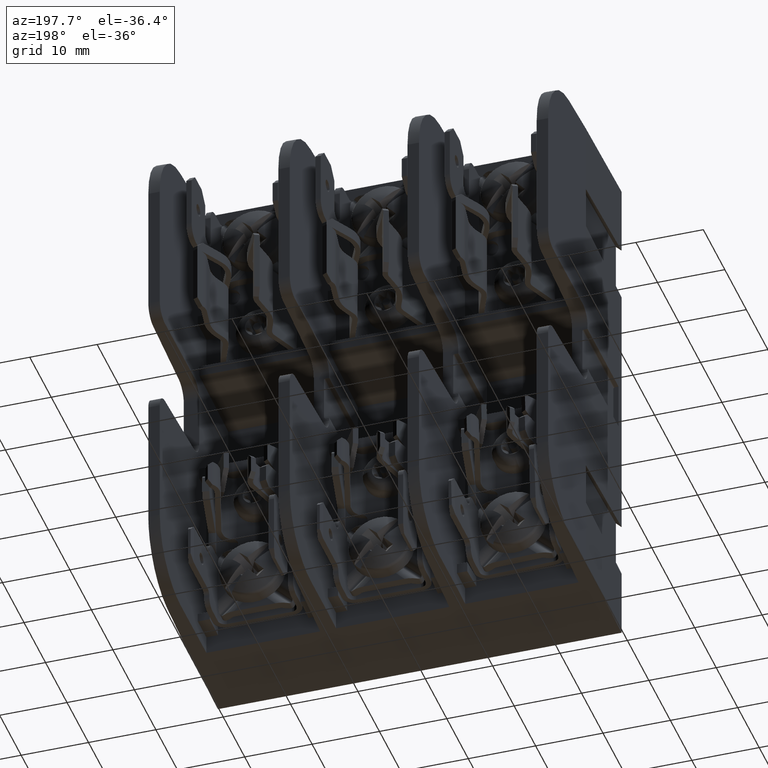
[diagram: clean part render]
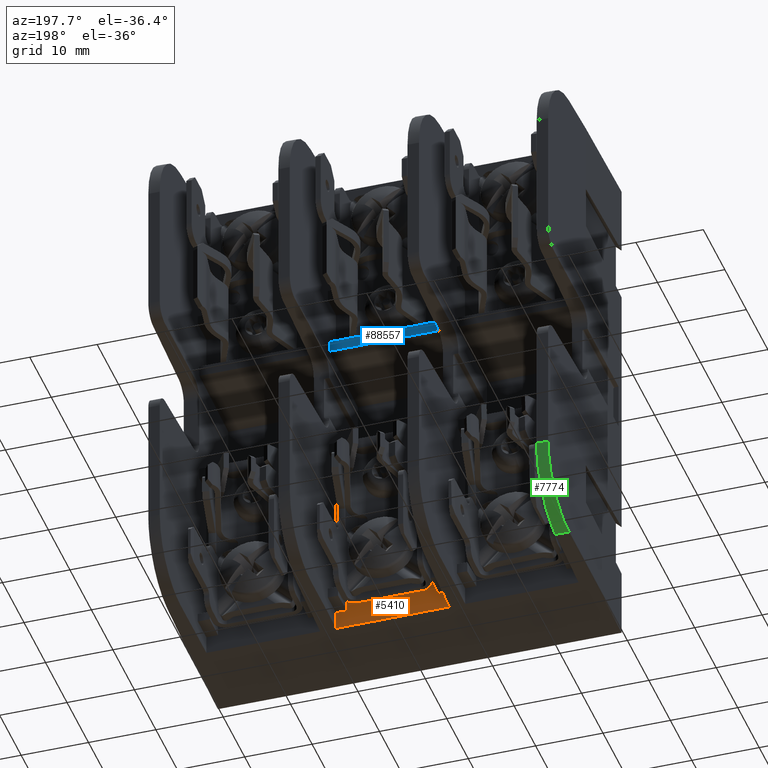
[diagram: same view with three faces highlighted in distinct colors, each labeled with its STEP entity id]
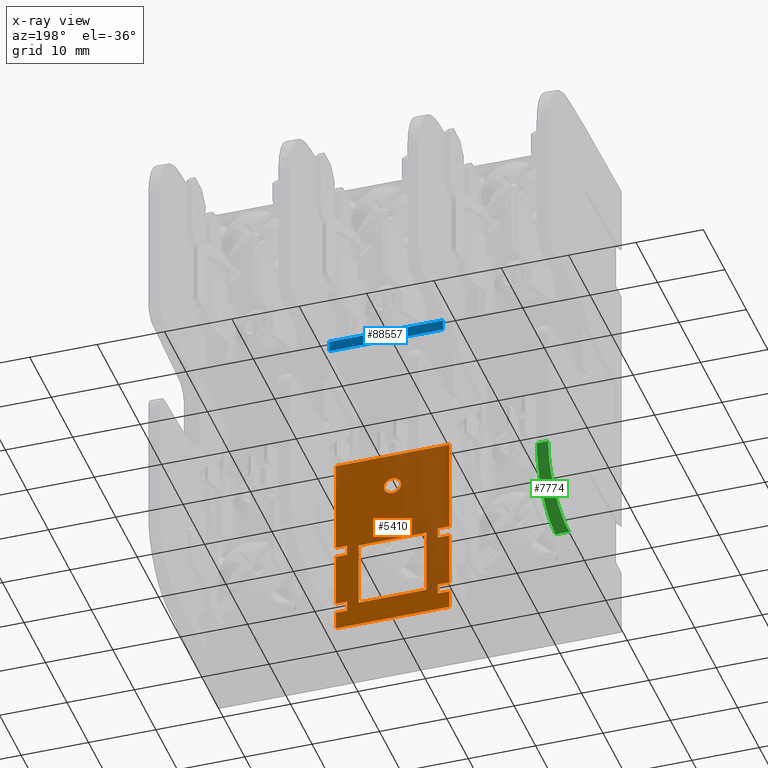
[diagram: x-ray of the same camera — body ghosted, the three highlighted faces saturated]
A machine part, auxiliary view with three faces highlighted in distinct colors.
The next image is the same camera in x-ray (body ghosted, the three faces saturated) — at least one of them is partly hidden behind the body in this view.
Their STEP definitions:

[orange] entity #5410 — the highlighted planar face has unit normal (-0, 1, 0).
#514 = DIRECTION ( 'NONE',  ( -1.000000000000000000, 0.0000000000000000000, 1.999810943495010400E-013 ) ) ;
#1821 = CIRCLE ( 'NONE', #128884, 0.05049999999999998200 ) ;
#2127 = VERTEX_POINT ( 'NONE', #25634 ) ;
#2628 = VECTOR ( 'NONE', #116517, 39.37007874015748100 ) ;
#2884 = DIRECTION ( 'NONE',  ( 1.000000000000000000, 0.0000000000000000000, 0.0000000000000000000 ) ) ;
#2974 = VECTOR ( 'NONE', #43272, 39.37007874015748100 ) ;
#3015 = EDGE_CURVE ( 'NONE', #97494, #79751, #48067, .T. ) ;
#3850 = VECTOR ( 'NONE', #114746, 39.37007874015748100 ) ;
#4665 = DIRECTION ( 'NONE',  ( -0.0000000000000000000, -0.0000000000000000000, 1.000000000000000000 ) ) ;
#4876 = VECTOR ( 'NONE', #125755, 39.37007874015748100 ) ;
#5318 = CARTESIAN_POINT ( 'NONE',  ( -0.4899999999999999900, 0.4999999999999997200, 1.507539615254126100 ) ) ;
#5410 = ADVANCED_FACE ( 'NONE', ( #39999, #125000, #69543 ), #92947, .T. ) ;
#6309 = VECTOR ( 'NONE', #28241, 39.37007874015748100 ) ;
#7245 = DIRECTION ( 'NONE',  ( 0.0000000000000000000, 1.000000000000000000, 0.0000000000000000000 ) ) ;
#7890 = VERTEX_POINT ( 'NONE', #70241 ) ;
#9371 = DIRECTION ( 'NONE',  ( 1.000000000000000000, -0.0000000000000000000, -0.0000000000000000000 ) ) ;
#9963 = DIRECTION ( 'NONE',  ( 0.0000000000000000000, 0.0000000000000000000, 1.000000000000000000 ) ) ;
#10548 = ORIENTED_EDGE ( 'NONE', *, *, #124526, .F. ) ;
#12171 = ORIENTED_EDGE ( 'NONE', *, *, #132145, .F. ) ;
#12708 = EDGE_CURVE ( 'NONE', #59884, #97494, #82815, .T. ) ;
#14083 = AXIS2_PLACEMENT_3D ( 'NONE', #26884, #104556, #38114 ) ;
#14349 = EDGE_LOOP ( 'NONE', ( #108594, #140623 ) ) ;
#15720 = VERTEX_POINT ( 'NONE', #85454 ) ;
#15790 = CARTESIAN_POINT ( 'NONE',  ( -0.4250000000000002700, 0.4999999999999997200, -1.012999999999999900 ) ) ;
#17501 = VECTOR ( 'NONE', #133677, 39.37007874015748100 ) ;
#18180 = LINE ( 'NONE', #34963, #47773 ) ;
#18865 = ORIENTED_EDGE ( 'NONE', *, *, #90939, .F. ) ;
#19134 = CARTESIAN_POINT ( 'NONE',  ( -1.087341054555523100, 0.4999999999999997200, -1.012999999999999900 ) ) ;
#23185 = VERTEX_POINT ( 'NONE', #132402 ) ;
#23400 = VECTOR ( 'NONE', #77250, 39.37007874015748100 ) ;
#23803 = CARTESIAN_POINT ( 'NONE',  ( -1.087341054555523100, 0.4999999999999997200, -0.3859999999999999000 ) ) ;
#23829 = ORIENTED_EDGE ( 'NONE', *, *, #101571, .F. ) ;
#24424 = EDGE_CURVE ( 'NONE', #132147, #79708, #128636, .T. ) ;
#24649 = CARTESIAN_POINT ( 'NONE',  ( -0.4249999999999999900, 0.4999999999999997200, -1.507539615254126100 ) ) ;
#24799 = LINE ( 'NONE', #36256, #54430 ) ;
#25634 = CARTESIAN_POINT ( 'NONE',  ( -0.4249999999999999900, 0.4999999999999997200, -0.3859999999999999000 ) ) ;
#26111 = EDGE_CURVE ( 'NONE', #36292, #74417, #144038, .T. ) ;
#26273 = EDGE_CURVE ( 'NONE', #135280, #83163, #50157, .T. ) ;
#26884 = CARTESIAN_POINT ( 'NONE',  ( -1.179999999999999900, 0.4999999999999997200, 1.507539615254126100 ) ) ;
#27198 = ORIENTED_EDGE ( 'NONE', *, *, #38484, .F. ) ;
#27383 = ORIENTED_EDGE ( 'NONE', *, *, #24424, .F. ) ;
#28241 = DIRECTION ( 'NONE',  ( 1.000000000000000000, 0.0000000000000000000, 0.0000000000000000000 ) ) ;
#31067 = ORIENTED_EDGE ( 'NONE', *, *, #73222, .F. ) ;
#33099 = EDGE_CURVE ( 'NONE', #7890, #70307, #132132, .T. ) ;
#34963 = CARTESIAN_POINT ( 'NONE',  ( -1.179999999999999900, 0.4999999999999997200, -1.338000000000000100 ) ) ;
#36134 = CARTESIAN_POINT ( 'NONE',  ( -1.087341054555523100, 0.4999999999999997200, -2.308927755917465700 ) ) ;
#36256 = CARTESIAN_POINT ( 'NONE',  ( -0.4899999999999999900, 0.4999999999999997200, -1.012999999999999900 ) ) ;
#36292 = VERTEX_POINT ( 'NONE', #113432 ) ;
#38114 = DIRECTION ( 'NONE',  ( 0.0000000000000000000, -0.0000000000000000000, 1.000000000000000000 ) ) ;
#38484 = EDGE_CURVE ( 'NONE', #83163, #23185, #55868, .T. ) ;
#38875 = EDGE_CURVE ( 'NONE', #91813, #89937, #40107, .T. ) ;
#39787 = DIRECTION ( 'NONE',  ( 1.000000000000000000, -0.0000000000000000000, -0.0000000000000000000 ) ) ;
#39999 = FACE_BOUND ( 'NONE', #72697, .T. ) ;
#40107 = CIRCLE ( 'NONE', #124315, 0.05049999999999998200 ) ;
#43231 = DIRECTION ( 'NONE',  ( -0.0000000000000000000, -0.0000000000000000000, 1.000000000000000000 ) ) ;
#43272 = DIRECTION ( 'NONE',  ( -1.000000000000000000, -0.0000000000000000000, 3.352797605324992200E-015 ) ) ;
#43408 = EDGE_CURVE ( 'NONE', #143279, #44944, #73407, .T. ) ;
#44675 = CARTESIAN_POINT ( 'NONE',  ( -1.087341054555523100, 0.4999999999999997200, -1.337999999999999900 ) ) ;
#44899 = LINE ( 'NONE', #126272, #129828 ) ;
#44944 = VERTEX_POINT ( 'NONE', #108721 ) ;
#45604 = CARTESIAN_POINT ( 'NONE',  ( -0.4249999999999999900, 0.4999999999999997200, 1.507539615254126100 ) ) ;
#47303 = DIRECTION ( 'NONE',  ( 0.0000000000000000000, 0.0000000000000000000, 1.000000000000000000 ) ) ;
#47773 = VECTOR ( 'NONE', #101439, 39.37007874015748100 ) ;
#48067 = LINE ( 'NONE', #117349, #100153 ) ;
#49639 = ORIENTED_EDGE ( 'NONE', *, *, #114468, .F. ) ;
#50157 = LINE ( 'NONE', #5318, #135203 ) ;
#51631 = LINE ( 'NONE', #60097, #110723 ) ;
#52163 = VERTEX_POINT ( 'NONE', #81658 ) ;
#53328 = VECTOR ( 'NONE', #56901, 39.37007874015748100 ) ;
#53641 = CARTESIAN_POINT ( 'NONE',  ( -0.9527143038813858900, 0.4999999999999997200, -0.9642856961186138100 ) ) ;
#53746 = ORIENTED_EDGE ( 'NONE', *, *, #74013, .F. ) ;
#54213 = LINE ( 'NONE', #111744, #80206 ) ;
#54430 = VECTOR ( 'NONE', #102705, 39.37007874015748100 ) ;
#54525 = EDGE_CURVE ( 'NONE', #52163, #107378, #115168, .T. ) ;
#55868 = LINE ( 'NONE', #132615, #140804 ) ;
#55965 = CARTESIAN_POINT ( 'NONE',  ( -0.4899999999999999900, 0.4999999999999997200, -1.400000000000000100 ) ) ;
#56085 = VERTEX_POINT ( 'NONE', #121962 ) ;
#56901 = DIRECTION ( 'NONE',  ( -0.0000000000000000000, -0.0000000000000000000, 1.000000000000000000 ) ) ;
#56948 = DIRECTION ( 'NONE',  ( -0.0000000000000000000, 0.0000000000000000000, -1.000000000000000000 ) ) ;
#57421 = CARTESIAN_POINT ( 'NONE',  ( -1.020000000000000000, 0.4999999999999997200, -0.9510000000000002900 ) ) ;
#57439 = CARTESIAN_POINT ( 'NONE',  ( -0.4899999999999999900, 0.4999999999999997200, 1.507539615254126100 ) ) ;
#58269 = EDGE_CURVE ( 'NONE', #89937, #91813, #1821, .T. ) ;
#58684 = CARTESIAN_POINT ( 'NONE',  ( -1.087341054555523100, 0.4999999999999997200, -1.399999999999986800 ) ) ;
#59253 = CARTESIAN_POINT ( 'NONE',  ( -0.4250000000000002700, 0.4999999999999997200, -0.9509999999999999600 ) ) ;
#59884 = VERTEX_POINT ( 'NONE', #124832 ) ;
#60097 = CARTESIAN_POINT ( 'NONE',  ( -0.4249999999999999900, 0.4999999999999997200, 1.507539615254126100 ) ) ;
#61389 = EDGE_CURVE ( 'NONE', #15720, #83038, #65308, .T. ) ;
#64068 = LINE ( 'NONE', #114637, #4876 ) ;
#64272 = ORIENTED_EDGE ( 'NONE', *, *, #135763, .F. ) ;
#64495 = VECTOR ( 'NONE', #87195, 39.37007874015748100 ) ;
#64900 = CARTESIAN_POINT ( 'NONE',  ( -0.5572856961186142300, 0.4999999999999997200, 1.507539615254126100 ) ) ;
#65278 = ORIENTED_EDGE ( 'NONE', *, *, #12708, .F. ) ;
#65308 = LINE ( 'NONE', #71915, #2628 ) ;
#66328 = VERTEX_POINT ( 'NONE', #44675 ) ;
#67125 = DIRECTION ( 'NONE',  ( -1.000000000000000000, -0.0000000000000000000, -0.0000000000000000000 ) ) ;
#67304 = CARTESIAN_POINT ( 'NONE',  ( -1.020000000000000000, 0.4999999999999997200, -1.012999999999999900 ) ) ;
#67969 = DIRECTION ( 'NONE',  ( -0.0000000000000000000, -0.0000000000000000000, 1.000000000000000000 ) ) ;
#68118 = CARTESIAN_POINT ( 'NONE',  ( -1.020000000000000000, 0.4999999999999997200, 1.507539615254126100 ) ) ;
#68602 = DIRECTION ( 'NONE',  ( -0.0000000000000000000, -0.0000000000000000000, 1.000000000000000000 ) ) ;
#69191 = ORIENTED_EDGE ( 'NONE', *, *, #3015, .F. ) ;
#69351 = EDGE_CURVE ( 'NONE', #72603, #108268, #85926, .T. ) ;
#69543 = FACE_OUTER_BOUND ( 'NONE', #108107, .T. ) ;
#70149 = VERTEX_POINT ( 'NONE', #15790 ) ;
#70241 = CARTESIAN_POINT ( 'NONE',  ( -1.020000000000000000, 0.4999999999999997200, -1.012999999999999900 ) ) ;
#70307 = VERTEX_POINT ( 'NONE', #19134 ) ;
#70846 = ORIENTED_EDGE ( 'NONE', *, *, #114703, .T. ) ;
#71231 = ORIENTED_EDGE ( 'NONE', *, *, #43408, .F. ) ;
#71915 = CARTESIAN_POINT ( 'NONE',  ( -1.087341054555523100, 0.4999999999999997200, -2.308927755917465700 ) ) ;
#71964 = CARTESIAN_POINT ( 'NONE',  ( -0.7550000000000000000, 0.4999999999999997200, -0.6454999999999998500 ) ) ;
#72603 = VERTEX_POINT ( 'NONE', #24649 ) ;
#72697 = EDGE_LOOP ( 'NONE', ( #31067, #69191, #65278, #23829 ) ) ;
#73222 = EDGE_CURVE ( 'NONE', #79751, #56085, #77913, .T. ) ;
#73407 = LINE ( 'NONE', #87359, #128900 ) ;
#73580 = CARTESIAN_POINT ( 'NONE',  ( -0.4899999999999999900, 0.4999999999999997200, -1.400000000000000100 ) ) ;
#73779 = CARTESIAN_POINT ( 'NONE',  ( -0.7550000000000000000, 0.4999999999999997200, -0.5949999999999998600 ) ) ;
#74013 = EDGE_CURVE ( 'NONE', #36292, #72603, #144031, .T. ) ;
#74290 = CARTESIAN_POINT ( 'NONE',  ( -1.020000000000000000, 0.4999999999999997200, -1.400000000000000100 ) ) ;
#74417 = VERTEX_POINT ( 'NONE', #58684 ) ;
#76014 = DIRECTION ( 'NONE',  ( -0.0000000000000000000, -0.0000000000000000000, -1.000000000000000000 ) ) ;
#76040 = CARTESIAN_POINT ( 'NONE',  ( -0.4250000000000002700, 0.4999999999999997200, -0.9509999999999999600 ) ) ;
#76294 = LINE ( 'NONE', #36134, #131786 ) ;
#76312 = CARTESIAN_POINT ( 'NONE',  ( -0.4899999999999999900, 0.4999999999999997200, -0.9509999999999999600 ) ) ;
#76492 = DIRECTION ( 'NONE',  ( 0.0000000000000000000, 1.000000000000000000, 0.0000000000000000000 ) ) ;
#76726 = ORIENTED_EDGE ( 'NONE', *, *, #26273, .F. ) ;
#76813 = CARTESIAN_POINT ( 'NONE',  ( -0.5572856961186141200, 0.4999999999999997200, -0.9642856961186138100 ) ) ;
#76943 = EDGE_CURVE ( 'NONE', #23185, #136676, #123350, .T. ) ;
#77250 = DIRECTION ( 'NONE',  ( -0.0000000000000000000, -0.0000000000000000000, 1.000000000000000000 ) ) ;
#77913 = LINE ( 'NONE', #64900, #103895 ) ;
#79708 = VERTEX_POINT ( 'NONE', #76312 ) ;
#79751 = VERTEX_POINT ( 'NONE', #76813 ) ;
#80206 = VECTOR ( 'NONE', #514, 39.37007874015748100 ) ;
#81658 = CARTESIAN_POINT ( 'NONE',  ( -1.020000000000000000, 0.4999999999999997200, -1.338000000000000100 ) ) ;
#82425 = CARTESIAN_POINT ( 'NONE',  ( -0.4899999999999999900, 0.4999999999999997200, -1.012999999999999900 ) ) ;
#82523 = EDGE_CURVE ( 'NONE', #66328, #70307, #76294, .T. ) ;
#82751 = ORIENTED_EDGE ( 'NONE', *, *, #26111, .T. ) ;
#82815 = LINE ( 'NONE', #122794, #53328 ) ;
#83038 = VERTEX_POINT ( 'NONE', #23803 ) ;
#83064 = DIRECTION ( 'NONE',  ( -0.0000000000000000000, -0.0000000000000000000, 1.000000000000000000 ) ) ;
#83163 = VERTEX_POINT ( 'NONE', #136781 ) ;
#83671 = VECTOR ( 'NONE', #67125, 39.37007874015748100 ) ;
#84051 = CARTESIAN_POINT ( 'NONE',  ( -0.7550000000000000000, 0.4999999999999997200, -0.5444999999999998700 ) ) ;
#84947 = DIRECTION ( 'NONE',  ( 0.0000000000000000000, 0.0000000000000000000, 1.000000000000000000 ) ) ;
#85454 = CARTESIAN_POINT ( 'NONE',  ( -1.087341054555523100, 0.4999999999999997200, -0.9509999999999999600 ) ) ;
#85926 = LINE ( 'NONE', #121387, #23400 ) ;
#87195 = DIRECTION ( 'NONE',  ( 1.000000000000000000, -0.0000000000000000000, -0.0000000000000000000 ) ) ;
#87359 = CARTESIAN_POINT ( 'NONE',  ( -0.4249999999999999900, 0.4999999999999997200, 1.507539615254126100 ) ) ;
#87703 = ORIENTED_EDGE ( 'NONE', *, *, #76943, .F. ) ;
#88131 = LINE ( 'NONE', #109734, #2974 ) ;
#89937 = VERTEX_POINT ( 'NONE', #71964 ) ;
#90939 = EDGE_CURVE ( 'NONE', #70149, #132147, #24799, .T. ) ;
#91452 = LINE ( 'NONE', #117065, #6309 ) ;
#91813 = VERTEX_POINT ( 'NONE', #84051 ) ;
#92253 = ORIENTED_EDGE ( 'NONE', *, *, #33099, .F. ) ;
#92432 = CARTESIAN_POINT ( 'NONE',  ( -1.179999999999999900, 0.4999999999999997200, -1.359714303881385300 ) ) ;
#92507 = LINE ( 'NONE', #92432, #3850 ) ;
#92947 = PLANE ( 'NONE',  #14083 ) ;
#93321 = ORIENTED_EDGE ( 'NONE', *, *, #117252, .F. ) ;
#93888 = VECTOR ( 'NONE', #67969, 39.37007874015748100 ) ;
#93974 = LINE ( 'NONE', #76040, #64495 ) ;
#97494 = VERTEX_POINT ( 'NONE', #53641 ) ;
#98807 = ORIENTED_EDGE ( 'NONE', *, *, #69351, .F. ) ;
#100153 = VECTOR ( 'NONE', #39787, 39.37007874015748100 ) ;
#101439 = DIRECTION ( 'NONE',  ( -1.000000000000000000, 0.0000000000000000000, 0.0000000000000000000 ) ) ;
#101571 = EDGE_CURVE ( 'NONE', #56085, #59884, #92507, .T. ) ;
#102705 = DIRECTION ( 'NONE',  ( -1.000000000000000000, -0.0000000000000000000, -0.0000000000000000000 ) ) ;
#102893 = CARTESIAN_POINT ( 'NONE',  ( -1.179999999999999900, 0.4999999999999997200, -1.507539615254126100 ) ) ;
#103895 = VECTOR ( 'NONE', #76014, 39.37007874015748100 ) ;
#104556 = DIRECTION ( 'NONE',  ( -0.0000000000000000000, 1.000000000000000000, 0.0000000000000000000 ) ) ;
#107378 = VERTEX_POINT ( 'NONE', #74290 ) ;
#108107 = EDGE_LOOP ( 'NONE', ( #27383, #18865, #12171, #87703, #27198, #76726, #10548, #98807, #53746, #82751, #133410, #129238, #129997, #124993, #92253, #49639, #70846, #128228, #142687, #64272, #71231, #93321 ) ) ;
#108268 = VERTEX_POINT ( 'NONE', #137083 ) ;
#108594 = ORIENTED_EDGE ( 'NONE', *, *, #38875, .F. ) ;
#108721 = CARTESIAN_POINT ( 'NONE',  ( -0.4249999999999999900, 0.4999999999999997200, -0.8206927129118671800 ) ) ;
#109734 = CARTESIAN_POINT ( 'NONE',  ( -1.180000000000008200, 0.4999999999999997200, -0.9509999999999997300 ) ) ;
#110723 = VECTOR ( 'NONE', #4665, 39.37007874015748100 ) ;
#111744 = CARTESIAN_POINT ( 'NONE',  ( -1.020000000000000000, 0.4999999999999997200, -1.400000000000000100 ) ) ;
#111779 = VECTOR ( 'NONE', #56948, 39.37007874015748100 ) ;
#113432 = CARTESIAN_POINT ( 'NONE',  ( -1.087341054555523100, 0.4999999999999998300, -1.507539615254125800 ) ) ;
#114135 = CARTESIAN_POINT ( 'NONE',  ( -1.087341054555523100, 0.4999999999999997200, -2.308927755917465700 ) ) ;
#114468 = EDGE_CURVE ( 'NONE', #122006, #7890, #64068, .T. ) ;
#114637 = CARTESIAN_POINT ( 'NONE',  ( -1.020000000000000000, 0.4999999999999997200, 1.507539615254126100 ) ) ;
#114703 = EDGE_CURVE ( 'NONE', #122006, #15720, #88131, .T. ) ;
#114746 = DIRECTION ( 'NONE',  ( -1.000000000000000000, -0.0000000000000000000, 0.0000000000000000000 ) ) ;
#115168 = LINE ( 'NONE', #68118, #111779 ) ;
#116517 = DIRECTION ( 'NONE',  ( 0.0000000000000000000, 0.0000000000000000000, 1.000000000000000000 ) ) ;
#117065 = CARTESIAN_POINT ( 'NONE',  ( -19685.79437007874400, 0.4999999999999997200, -0.3860000000000000100 ) ) ;
#117252 = EDGE_CURVE ( 'NONE', #79708, #143279, #93974, .T. ) ;
#117349 = CARTESIAN_POINT ( 'NONE',  ( -1.179999999999999900, 0.4999999999999997200, -0.9642856961186137000 ) ) ;
#121387 = CARTESIAN_POINT ( 'NONE',  ( -0.4249999999999999900, 0.4999999999999997200, 1.507539615254126100 ) ) ;
#121962 = CARTESIAN_POINT ( 'NONE',  ( -0.5572856961186141200, 0.4999999999999997200, -1.359714303881385900 ) ) ;
#122006 = VERTEX_POINT ( 'NONE', #57421 ) ;
#122794 = CARTESIAN_POINT ( 'NONE',  ( -0.9527143038813858900, 0.4999999999999997200, 1.507539615254126100 ) ) ;
#123163 = CARTESIAN_POINT ( 'NONE',  ( -0.4249999999999999900, 0.4999999999999997200, -1.091307287088132400 ) ) ;
#123350 = LINE ( 'NONE', #45604, #93888 ) ;
#124315 = AXIS2_PLACEMENT_3D ( 'NONE', #73779, #7245, #84947 ) ;
#124526 = EDGE_CURVE ( 'NONE', #108268, #135280, #142683, .T. ) ;
#124560 = EDGE_CURVE ( 'NONE', #107378, #74417, #54213, .T. ) ;
#124832 = CARTESIAN_POINT ( 'NONE',  ( -0.9527143038813858900, 0.4999999999999997200, -1.359714303881385900 ) ) ;
#124993 = ORIENTED_EDGE ( 'NONE', *, *, #82523, .T. ) ;
#125000 = FACE_BOUND ( 'NONE', #14349, .T. ) ;
#125199 = VECTOR ( 'NONE', #68602, 39.37007874015748100 ) ;
#125248 = DIRECTION ( 'NONE',  ( 0.0000000000000000000, 0.0000000000000000000, 1.000000000000000000 ) ) ;
#125755 = DIRECTION ( 'NONE',  ( -0.0000000000000000000, 0.0000000000000000000, -1.000000000000000000 ) ) ;
#126272 = CARTESIAN_POINT ( 'NONE',  ( -0.4249999999999999900, 0.4999999999999997200, 1.507539615254126100 ) ) ;
#128228 = ORIENTED_EDGE ( 'NONE', *, *, #61389, .T. ) ;
#128636 = LINE ( 'NONE', #57439, #125199 ) ;
#128884 = AXIS2_PLACEMENT_3D ( 'NONE', #142911, #76492, #9963 ) ;
#128900 = VECTOR ( 'NONE', #43231, 39.37007874015748100 ) ;
#129238 = ORIENTED_EDGE ( 'NONE', *, *, #54525, .F. ) ;
#129828 = VECTOR ( 'NONE', #137449, 39.37007874015748100 ) ;
#129997 = ORIENTED_EDGE ( 'NONE', *, *, #137728, .T. ) ;
#131786 = VECTOR ( 'NONE', #47303, 39.37007874015748100 ) ;
#132132 = LINE ( 'NONE', #67304, #17501 ) ;
#132145 = EDGE_CURVE ( 'NONE', #136676, #70149, #51631, .T. ) ;
#132147 = VERTEX_POINT ( 'NONE', #82425 ) ;
#132402 = CARTESIAN_POINT ( 'NONE',  ( -0.4249999999999999900, 0.4999999999999997200, -1.338000000000000100 ) ) ;
#132615 = CARTESIAN_POINT ( 'NONE',  ( -0.4249999999999999900, 0.4999999999999997200, -1.338000000000000100 ) ) ;
#133410 = ORIENTED_EDGE ( 'NONE', *, *, #124560, .F. ) ;
#133677 = DIRECTION ( 'NONE',  ( -1.000000000000000000, 0.0000000000000000000, 0.0000000000000000000 ) ) ;
#135203 = VECTOR ( 'NONE', #83064, 39.37007874015748100 ) ;
#135280 = VERTEX_POINT ( 'NONE', #73580 ) ;
#135763 = EDGE_CURVE ( 'NONE', #44944, #2127, #44899, .T. ) ;
#136676 = VERTEX_POINT ( 'NONE', #123163 ) ;
#136781 = CARTESIAN_POINT ( 'NONE',  ( -0.4899999999999999900, 0.4999999999999997200, -1.338000000000000100 ) ) ;
#137083 = CARTESIAN_POINT ( 'NONE',  ( -0.4249999999999999900, 0.4999999999999997200, -1.400000000000000100 ) ) ;
#137449 = DIRECTION ( 'NONE',  ( -0.0000000000000000000, -0.0000000000000000000, 1.000000000000000000 ) ) ;
#137728 = EDGE_CURVE ( 'NONE', #52163, #66328, #18180, .T. ) ;
#140508 = VECTOR ( 'NONE', #2884, 39.37007874015748100 ) ;
#140513 = VECTOR ( 'NONE', #125248, 39.37007874015748100 ) ;
#140623 = ORIENTED_EDGE ( 'NONE', *, *, #58269, .F. ) ;
#140804 = VECTOR ( 'NONE', #9371, 39.37007874015748100 ) ;
#142683 = LINE ( 'NONE', #55965, #83671 ) ;
#142687 = ORIENTED_EDGE ( 'NONE', *, *, #142779, .T. ) ;
#142779 = EDGE_CURVE ( 'NONE', #83038, #2127, #91452, .T. ) ;
#142911 = CARTESIAN_POINT ( 'NONE',  ( -0.7550000000000000000, 0.4999999999999997200, -0.5949999999999998600 ) ) ;
#143279 = VERTEX_POINT ( 'NONE', #59253 ) ;
#144031 = LINE ( 'NONE', #102893, #140508 ) ;
#144038 = LINE ( 'NONE', #114135, #140513 ) ;

[blue] entity #88557 — the highlighted planar face has unit normal (0, 1, 0).
#2161 = LINE ( 'NONE', #79223, #54396 ) ;
#4038 = EDGE_CURVE ( 'NONE', #82041, #123889, #61155, .T. ) ;
#6562 = ORIENTED_EDGE ( 'NONE', *, *, #72013, .F. ) ;
#15692 = ORIENTED_EDGE ( 'NONE', *, *, #83817, .F. ) ;
#19954 = VERTEX_POINT ( 'NONE', #72935 ) ;
#22856 = DIRECTION ( 'NONE',  ( 0.0000000000000000000, 1.000000000000000000, 0.0000000000000000000 ) ) ;
#32811 = CARTESIAN_POINT ( 'NONE',  ( -1.089522937670835700, 0.6249999999999998900, 0.3213334039831676800 ) ) ;
#32990 = CARTESIAN_POINT ( 'NONE',  ( -0.4249999999999999900, 0.6249999999999998900, 0.3860000000000000100 ) ) ;
#33541 = PLANE ( 'NONE',  #136102 ) ;
#39049 = VERTEX_POINT ( 'NONE', #32990 ) ;
#54396 = VECTOR ( 'NONE', #90361, 39.37007874015748100 ) ;
#59122 = CARTESIAN_POINT ( 'NONE',  ( -1.089522937671549800, 0.6249999999999998900, 0.3860000000000001800 ) ) ;
#61155 = LINE ( 'NONE', #32811, #90676 ) ;
#62533 = LINE ( 'NONE', #142684, #88580 ) ;
#68268 = CARTESIAN_POINT ( 'NONE',  ( -0.4249999999999999900, 0.6249999999999998900, 0.3213334039831676800 ) ) ;
#71090 = ORIENTED_EDGE ( 'NONE', *, *, #4038, .F. ) ;
#72013 = EDGE_CURVE ( 'NONE', #123889, #19954, #2161, .T. ) ;
#72935 = CARTESIAN_POINT ( 'NONE',  ( -0.4249999999999999900, 0.6249999999999998900, 0.3213334039831676800 ) ) ;
#75969 = ORIENTED_EDGE ( 'NONE', *, *, #105135, .T. ) ;
#79223 = CARTESIAN_POINT ( 'NONE',  ( -19685.79437007874400, 0.6249999999999998900, 0.3213334039831676800 ) ) ;
#79373 = DIRECTION ( 'NONE',  ( 0.0000000000000000000, 0.0000000000000000000, 1.000000000000000000 ) ) ;
#82041 = VERTEX_POINT ( 'NONE', #59122 ) ;
#83817 = EDGE_CURVE ( 'NONE', #19954, #39049, #120206, .T. ) ;
#88557 = ADVANCED_FACE ( 'NONE', ( #138143 ), #33541, .T. ) ;
#88580 = VECTOR ( 'NONE', #109743, 39.37007874015748100 ) ;
#89316 = CARTESIAN_POINT ( 'NONE',  ( -19685.79437007874400, 0.6249999999999998900, 0.3213334039831676800 ) ) ;
#90361 = DIRECTION ( 'NONE',  ( 1.000000000000000000, 0.0000000000000000000, 0.0000000000000000000 ) ) ;
#90676 = VECTOR ( 'NONE', #122082, 39.37007874015748100 ) ;
#90702 = VECTOR ( 'NONE', #79373, 39.37007874015748100 ) ;
#97034 = EDGE_LOOP ( 'NONE', ( #71090, #75969, #15692, #6562 ) ) ;
#100491 = DIRECTION ( 'NONE',  ( 0.0000000000000000000, -0.0000000000000000000, 1.000000000000000000 ) ) ;
#105135 = EDGE_CURVE ( 'NONE', #82041, #39049, #62533, .T. ) ;
#109743 = DIRECTION ( 'NONE',  ( 1.000000000000000000, 0.0000000000000000000, 0.0000000000000000000 ) ) ;
#119100 = CARTESIAN_POINT ( 'NONE',  ( -1.089522937670835700, 0.6249999999999998900, 0.3213334039831676800 ) ) ;
#120206 = LINE ( 'NONE', #68268, #90702 ) ;
#122082 = DIRECTION ( 'NONE',  ( -0.0000000000000000000, 0.0000000000000000000, -1.000000000000000000 ) ) ;
#123889 = VERTEX_POINT ( 'NONE', #119100 ) ;
#136102 = AXIS2_PLACEMENT_3D ( 'NONE', #89316, #22856, #100491 ) ;
#138143 = FACE_OUTER_BOUND ( 'NONE', #97034, .T. ) ;
#142684 = CARTESIAN_POINT ( 'NONE',  ( -19685.79437007874400, 0.6249999999999998900, 0.3860000000000000100 ) ) ;

[green] entity #7774 — the highlighted cylindrical surface (partial cylindrical patch) has radius 9.525 mm, axis along (-1, 0, 0).
#2929 = EDGE_CURVE ( 'NONE', #92391, #10680, #18473, .T. ) ;
#4891 = CYLINDRICAL_SURFACE ( 'NONE', #103804, 0.3750000000000000600 ) ;
#7774 = ADVANCED_FACE ( 'NONE', ( #136939 ), #4891, .T. ) ;
#10680 = VERTEX_POINT ( 'NONE', #31408 ) ;
#12470 = DIRECTION ( 'NONE',  ( -1.000000000000000000, 4.077385065170542900E-015, 1.423854239899158900E-016 ) ) ;
#17268 = EDGE_CURVE ( 'NONE', #10680, #89495, #37323, .T. ) ;
#17278 = CARTESIAN_POINT ( 'NONE',  ( -1.856479657147376700, 1.309999999999999400, -1.330758150942661400 ) ) ;
#18473 = LINE ( 'NONE', #82971, #103590 ) ;
#18824 = CARTESIAN_POINT ( 'NONE',  ( -1.850162447667135200, 0.9480873112634371500, -1.491892061545318400 ) ) ;
#19826 = CARTESIAN_POINT ( 'NONE',  ( -1.923479657147376500, 1.310000000000000100, -1.330758150942661400 ) ) ;
#20612 = VERTEX_POINT ( 'NONE', #18824 ) ;
#31408 = CARTESIAN_POINT ( 'NONE',  ( -1.923479657147376500, 1.309999999999999600, -1.117120501413157300 ) ) ;
#37323 =( BOUNDED_CURVE ( )  B_SPLINE_CURVE ( 3, ( #97582, #19826, #42283, #119815 ),
 .UNSPECIFIED., .F., .F. ) 
 B_SPLINE_CURVE_WITH_KNOTS ( ( 4, 4 ),
 ( 3.141592653589785100, 4.677482395344795500 ),
 .UNSPECIFIED. ) 
 CURVE ( )  GEOMETRIC_REPRESENTATION_ITEM ( )  RATIONAL_B_SPLINE_CURVE ( ( 1.000000000000000000, 0.8128932002257673900, 0.8128932002257673900, 1.000000000000000000 ) ) 
 REPRESENTATION_ITEM ( '' )  );
#40908 = EDGE_LOOP ( 'NONE', ( #137362, #116252, #122872, #90102 ) ) ;
#42283 = CARTESIAN_POINT ( 'NONE',  ( -1.926070079225983700, 1.161594818509144000, -1.484436215100033700 ) ) ;
#43484 = VECTOR ( 'NONE', #125388, 39.37007874015748100 ) ;
#43766 =( BOUNDED_CURVE ( )  B_SPLINE_CURVE ( 3, ( #127928, #50332, #17278, #94991 ),
 .UNSPECIFIED., .F., .F. ) 
 B_SPLINE_CURVE_WITH_KNOTS ( ( 4, 4 ),
 ( 4.747295565424567900, 6.283185307179578200 ),
 .UNSPECIFIED. ) 
 CURVE ( )  GEOMETRIC_REPRESENTATION_ITEM ( )  RATIONAL_B_SPLINE_CURVE ( ( 1.000000000000000000, 0.8128932002257673900, 0.8128932002257673900, 1.000000000000000000 ) ) 
 REPRESENTATION_ITEM ( '' )  );
#50332 = CARTESIAN_POINT ( 'NONE',  ( -1.853889235068770300, 1.161594818509143800, -1.484436215100033700 ) ) ;
#61584 = DIRECTION ( 'NONE',  ( -1.000000000000000000, 4.077385065170542900E-015, 1.423854239899158900E-016 ) ) ;
#68371 = DIRECTION ( 'NONE',  ( -4.370956789862820400E-015, -1.000000000000000000, 0.0000000000000000000 ) ) ;
#78992 = CARTESIAN_POINT ( 'NONE',  ( -1.923479657147377800, 0.9349999999999997200, -1.117120501413157300 ) ) ;
#82971 = CARTESIAN_POINT ( 'NONE',  ( -1.923479657147376500, 1.309999999999999600, -1.117120501413157300 ) ) ;
#88103 = CARTESIAN_POINT ( 'NONE',  ( -1.929796866627619100, 0.9480873112634374800, -1.491892061545318400 ) ) ;
#89495 = VERTEX_POINT ( 'NONE', #88103 ) ;
#90102 = ORIENTED_EDGE ( 'NONE', *, *, #2929, .F. ) ;
#92391 = VERTEX_POINT ( 'NONE', #106612 ) ;
#94991 = CARTESIAN_POINT ( 'NONE',  ( -1.856479657147376300, 1.309999999999999400, -1.117120501413157300 ) ) ;
#97582 = CARTESIAN_POINT ( 'NONE',  ( -1.923479657147376500, 1.309999999999999600, -1.117120501413157300 ) ) ;
#103590 = VECTOR ( 'NONE', #61584, 39.37007874015748100 ) ;
#103804 = AXIS2_PLACEMENT_3D ( 'NONE', #78992, #12470, #68371 ) ;
#106612 = CARTESIAN_POINT ( 'NONE',  ( -1.856479657147376300, 1.309999999999999400, -1.117120501413157300 ) ) ;
#113514 = EDGE_CURVE ( 'NONE', #20612, #92391, #43766, .T. ) ;
#114271 = CARTESIAN_POINT ( 'NONE',  ( -1.934999999999996100, 0.9480873112634377000, -1.491892061545318600 ) ) ;
#116252 = ORIENTED_EDGE ( 'NONE', *, *, #117462, .F. ) ;
#117462 = EDGE_CURVE ( 'NONE', #89495, #20612, #135418, .T. ) ;
#119815 = CARTESIAN_POINT ( 'NONE',  ( -1.929796866627619100, 0.9480873112634374800, -1.491892061545318400 ) ) ;
#122872 = ORIENTED_EDGE ( 'NONE', *, *, #17268, .F. ) ;
#125388 = DIRECTION ( 'NONE',  ( 1.000000000000000000, -4.077385065170542100E-015, -1.423854239899158900E-016 ) ) ;
#127928 = CARTESIAN_POINT ( 'NONE',  ( -1.850162447667135200, 0.9480873112634371500, -1.491892061545318400 ) ) ;
#135418 = LINE ( 'NONE', #114271, #43484 ) ;
#136939 = FACE_OUTER_BOUND ( 'NONE', #40908, .T. ) ;
#137362 = ORIENTED_EDGE ( 'NONE', *, *, #113514, .F. ) ;